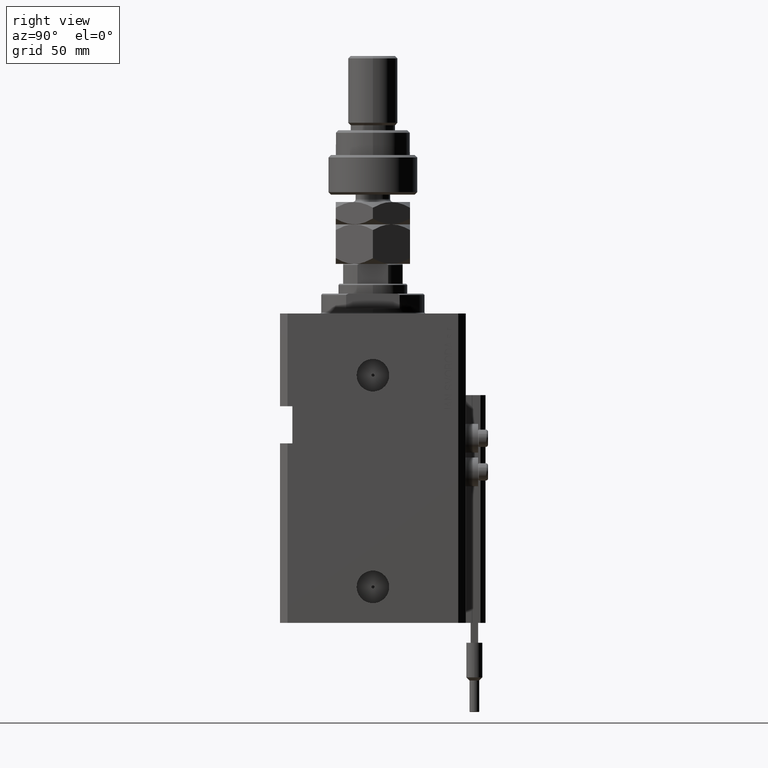
[diagram: clean part render]
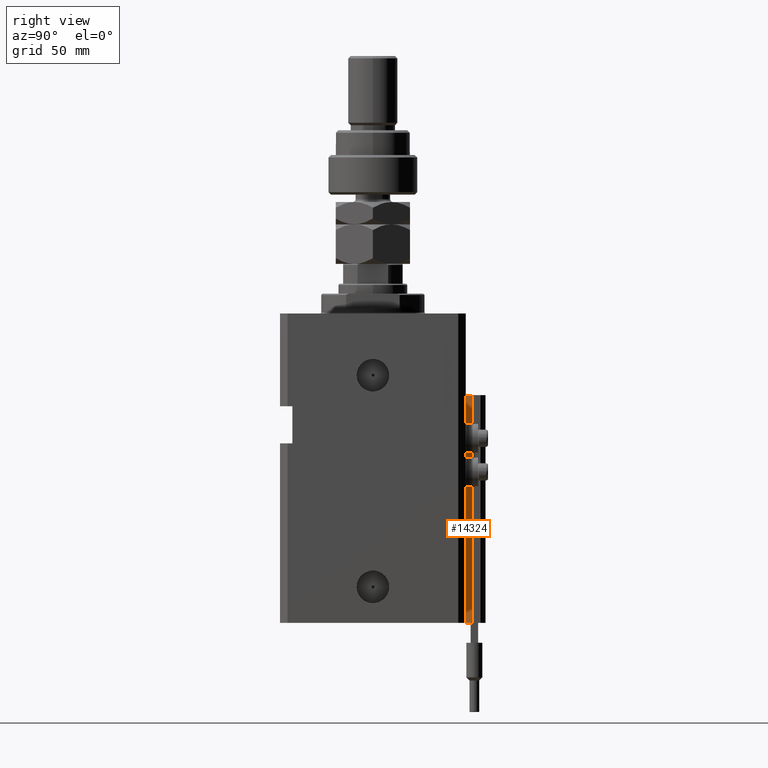
[diagram: same view with one face highlighted and labeled with its STEP entity id]
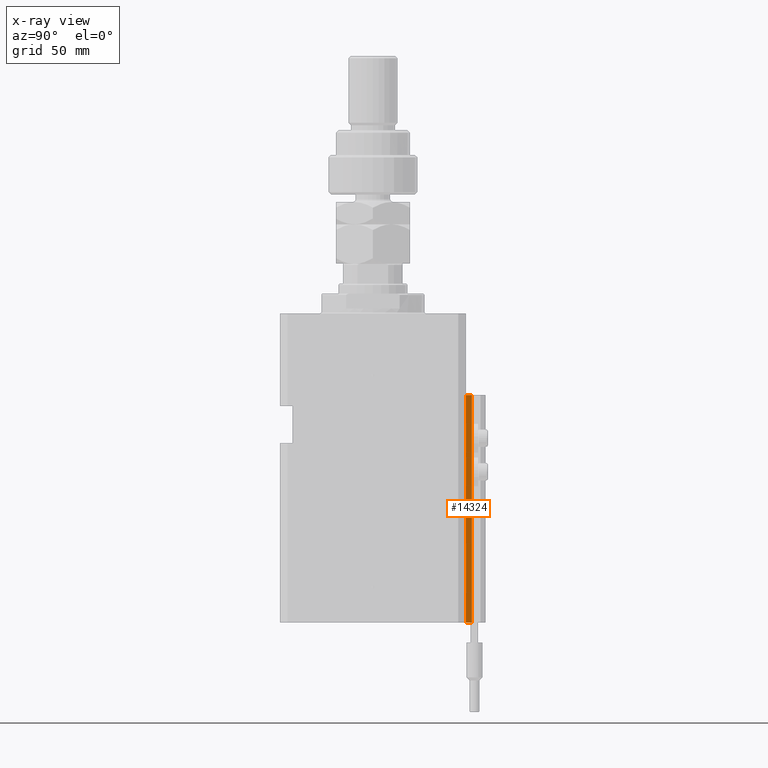
[diagram: x-ray of the same camera — body ghosted, the highlighted face saturated]
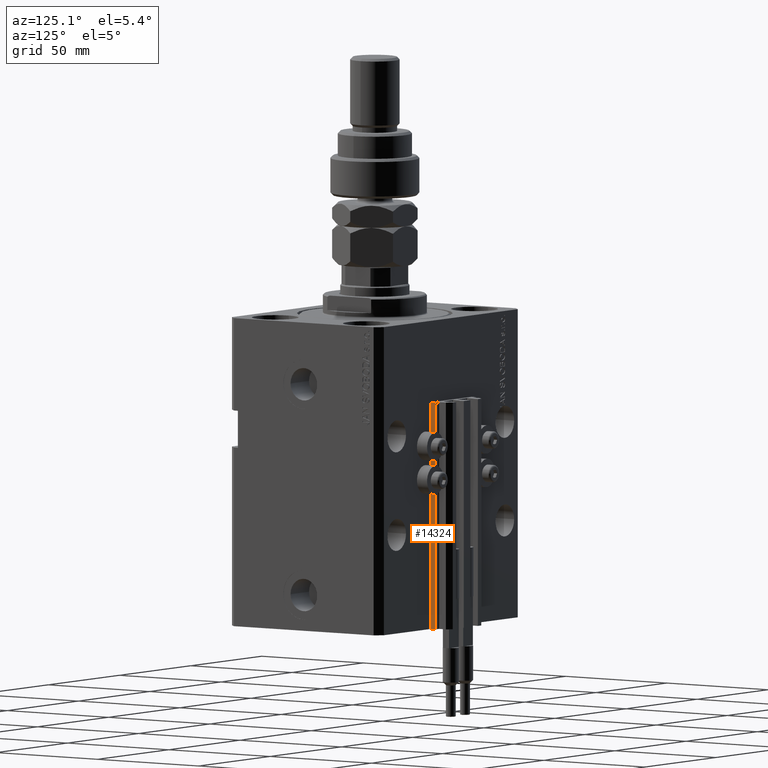
[diagram: same view with one face highlighted and labeled with its STEP entity id]
A machine part, right view. The second image highlights one B-rep face of the part: STEP entity #14324.
The next image is the same camera in x-ray: the body ghosted, the highlighted face saturated — about 0% of this face is hidden behind the body in this view.
A second angle (auxiliary view) of the same face is appended — the face is thin or edge-on in the first view.
In plain terms, the highlighted planar face has unit normal (1, 0, 0).
Its self-contained STEP definition (entity closure, byte-faithful):
#2114 = EDGE_CURVE ( 'NONE', #26194, #11662, #12502, .T. ) ;
#2815 = DIRECTION ( 'NONE',  ( 1.000000000000000000, 0.000000000000000000, 0.000000000000000000 ) ) ;
#5711 = DIRECTION ( 'NONE',  ( 0.000000000000000000, 0.000000000000000000, -1.000000000000000000 ) ) ;
#8231 = VECTOR ( 'NONE', #50470, 1000.000000000000000 ) ;
#10091 = EDGE_CURVE ( 'NONE', #34698, #37906, #35464, .T. ) ;
#10599 = CARTESIAN_POINT ( 'NONE',  ( 14.49999999999999645, 37.50000000000000711, -125.0000000000000000 ) ) ;
#11662 = VERTEX_POINT ( 'NONE', #12966 ) ;
#12495 = VECTOR ( 'NONE', #14171, 1000.000000000000000 ) ;
#12502 = LINE ( 'NONE', #24549, #43805 ) ;
#12966 = CARTESIAN_POINT ( 'NONE',  ( 14.49999999999999645, 40.00000000000002132, -33.00000000000000000 ) ) ;
#13060 = DIRECTION ( 'NONE',  ( 0.000000000000000000, 1.000000000000000000, 0.000000000000000000 ) ) ;
#14171 = DIRECTION ( 'NONE',  ( 0.000000000000000000, 1.000000000000000000, 0.000000000000000000 ) ) ;
#14324 = ADVANCED_FACE ( 'NONE', ( #40351 ), #18286, .T. ) ;
#14360 = CARTESIAN_POINT ( 'NONE',  ( 14.49999999999999645, 37.50000000000000711, -125.0000000000000000 ) ) ;
#14982 = EDGE_CURVE ( 'NONE', #37906, #11662, #50105, .T. ) ;
#18286 = PLANE ( 'NONE',  #18331 ) ;
#18331 = AXIS2_PLACEMENT_3D ( 'NONE', #14360, #2815, #5711 ) ;
#19994 = EDGE_LOOP ( 'NONE', ( #33339, #27581, #40833, #44596 ) ) ;
#20364 = VECTOR ( 'NONE', #13060, 1000.000000000000000 ) ;
#24549 = CARTESIAN_POINT ( 'NONE',  ( 14.49999999999999645, 40.00000000000002132, -125.0000000000000000 ) ) ;
#26194 = VERTEX_POINT ( 'NONE', #46755 ) ;
#27581 = ORIENTED_EDGE ( 'NONE', *, *, #10091, .F. ) ;
#33339 = ORIENTED_EDGE ( 'NONE', *, *, #14982, .F. ) ;
#34698 = VERTEX_POINT ( 'NONE', #47625 ) ;
#35155 = EDGE_CURVE ( 'NONE', #34698, #26194, #44032, .T. ) ;
#35464 = LINE ( 'NONE', #10599, #8231 ) ;
#37906 = VERTEX_POINT ( 'NONE', #44986 ) ;
#38817 = CARTESIAN_POINT ( 'NONE',  ( 14.49999999999999645, 37.50000000000000711, -33.00000000000000000 ) ) ;
#40351 = FACE_OUTER_BOUND ( 'NONE', #19994, .T. ) ;
#40833 = ORIENTED_EDGE ( 'NONE', *, *, #35155, .T. ) ;
#41121 = CARTESIAN_POINT ( 'NONE',  ( 14.49999999999999645, 37.50000000000000711, -125.0000000000000000 ) ) ;
#43805 = VECTOR ( 'NONE', #44495, 1000.000000000000000 ) ;
#44032 = LINE ( 'NONE', #41121, #20364 ) ;
#44495 = DIRECTION ( 'NONE',  ( 0.000000000000000000, 0.000000000000000000, 1.000000000000000000 ) ) ;
#44596 = ORIENTED_EDGE ( 'NONE', *, *, #2114, .T. ) ;
#44986 = CARTESIAN_POINT ( 'NONE',  ( 14.49999999999999645, 37.50000000000000711, -33.00000000000000000 ) ) ;
#46755 = CARTESIAN_POINT ( 'NONE',  ( 14.49999999999999645, 40.00000000000002132, -125.0000000000000000 ) ) ;
#47625 = CARTESIAN_POINT ( 'NONE',  ( 14.49999999999999645, 37.50000000000000711, -125.0000000000000000 ) ) ;
#50105 = LINE ( 'NONE', #38817, #12495 ) ;
#50470 = DIRECTION ( 'NONE',  ( 0.000000000000000000, 0.000000000000000000, 1.000000000000000000 ) ) ;